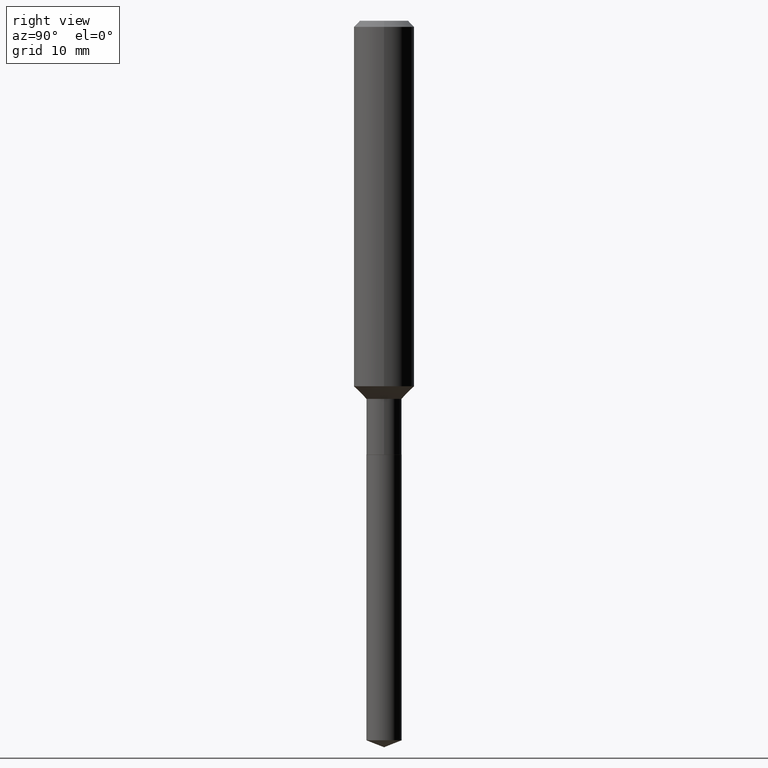
[diagram: clean part render]
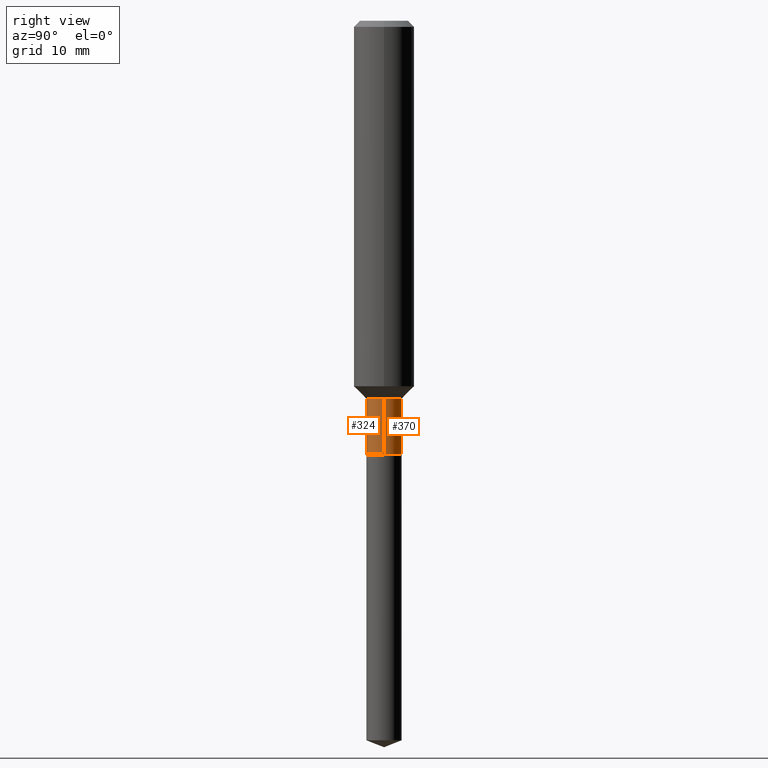
[diagram: same view with one multi-face feature highlighted, each face labeled with its STEP entity id]
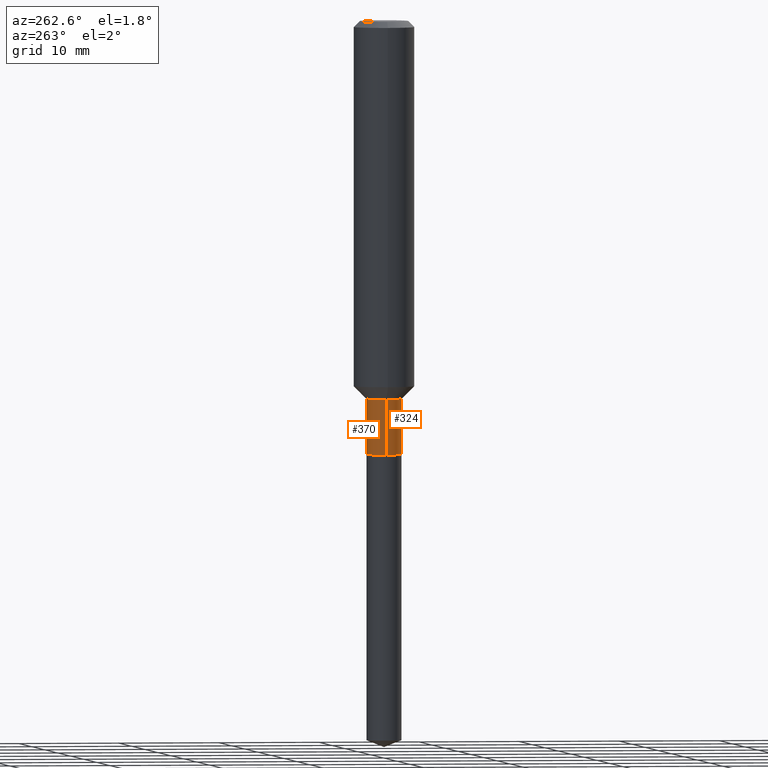
[diagram: same view with one multi-face feature highlighted, each face labeled with its STEP entity id]
A machine part, right view. The highlighted faces form ONE feature: a constant-radius fillet chain: 2 tangent blend faces with common blend radius 1.7501 mm. The faces share edges in the B-rep.
A second angle (auxiliary view) of the same feature is appended — it is thin or edge-on in the first view.
Their STEP definitions:
[1] entity #370 (Cylinder):
#24 = VECTOR ( 'NONE', #487, 39.37007874015748143 ) ;
#26 = CARTESIAN_POINT ( 'NONE',  ( 0.000000000000000000, 0.000000000000000000, 0.000000000000000000 ) ) ;
#40 = DIRECTION ( 'NONE',  ( 1.000000000000000000, -6.982962677686268288E-15, 0.000000000000000000 ) ) ;
#53 = EDGE_LOOP ( 'NONE', ( #60, #425, #317, #76 ) ) ;
#57 = FACE_OUTER_BOUND ( 'NONE', #53, .T. ) ;
#59 = DIRECTION ( 'NONE',  ( -2.445468806185136597E-29, 3.491481338843145583E-15, 1.000000000000000000 ) ) ;
#60 = ORIENTED_EDGE ( 'NONE', *, *, #243, .T. ) ;
#65 = VERTEX_POINT ( 'NONE', #411 ) ;
#76 = ORIENTED_EDGE ( 'NONE', *, *, #101, .F. ) ;
#101 = EDGE_CURVE ( 'NONE', #161, #409, #229, .T. ) ;
#104 = CARTESIAN_POINT ( 'NONE',  ( 0.06889999999999997515, -5.632108547687876483E-15, -1.475300000000000056 ) ) ;
#129 = DIRECTION ( 'NONE',  ( -2.445468806185136597E-29, 3.491481338843145583E-15, 1.000000000000000000 ) ) ;
#157 = VECTOR ( 'NONE', #488, 39.37007874015748143 ) ;
#161 = VERTEX_POINT ( 'NONE', #236 ) ;
#162 = DIRECTION ( 'NONE',  ( 1.000000000000000000, -6.982962677686265922E-15, 0.000000000000000000 ) ) ;
#173 = CIRCLE ( 'NONE', #241, 0.06889999999999997515 ) ;
#177 = CARTESIAN_POINT ( 'NONE',  ( -0.06889999999999997515, -5.040418773588007011E-15, -1.475300000000000056 ) ) ;
#186 = CARTESIAN_POINT ( 'NONE',  ( 0.06890000000000000291, -4.811261284925837385E-16, 3.359685798523399268E-30 ) ) ;
#203 = DIRECTION ( 'NONE',  ( 1.000000000000000000, -6.982962677686265922E-15, 4.876176775795934672E-29 ) ) ;
#229 = LINE ( 'NONE', #186, #157 ) ;
#236 = CARTESIAN_POINT ( 'NONE',  ( 0.06890000000000000291, -6.390109146350723310E-15, -1.692399999999999904 ) ) ;
#241 = AXIS2_PLACEMENT_3D ( 'NONE', #257, #377, #40 ) ;
#243 = EDGE_CURVE ( 'NONE', #161, #65, #268, .T. ) ;
#255 = CARTESIAN_POINT ( 'NONE',  ( 4.138711407587725556E-29, -5.908983017858139571E-15, -1.692399999999999904 ) ) ;
#257 = CARTESIAN_POINT ( 'NONE',  ( 3.607800129764931825E-29, -5.150982419195292745E-15, -1.475300000000000056 ) ) ;
#268 = CIRCLE ( 'NONE', #338, 0.06890000000000000291 ) ;
#317 = ORIENTED_EDGE ( 'NONE', *, *, #482, .F. ) ;
#325 = CYLINDRICAL_SURFACE ( 'NONE', #426, 0.06890000000000000291 ) ;
#338 = AXIS2_PLACEMENT_3D ( 'NONE', #255, #129, #162 ) ;
#370 = ADVANCED_FACE ( 'NONE', ( #57 ), #325, .T. ) ;
#377 = DIRECTION ( 'NONE',  ( -2.445468806185136597E-29, 3.491481338843145583E-15, 1.000000000000000000 ) ) ;
#409 = VERTEX_POINT ( 'NONE', #104 ) ;
#411 = CARTESIAN_POINT ( 'NONE',  ( -0.06890000000000001679, -5.040418773588007011E-15, -1.692399999999999904 ) ) ;
#425 = ORIENTED_EDGE ( 'NONE', *, *, #463, .T. ) ;
#426 = AXIS2_PLACEMENT_3D ( 'NONE', #26, #59, #203 ) ;
#441 = VERTEX_POINT ( 'NONE', #177 ) ;
#446 = LINE ( 'NONE', #489, #24 ) ;
#463 = EDGE_CURVE ( 'NONE', #65, #441, #446, .T. ) ;
#482 = EDGE_CURVE ( 'NONE', #409, #441, #173, .T. ) ;
#487 = DIRECTION ( 'NONE',  ( -2.445468806185136877E-29, 3.491481338843145188E-15, 1.000000000000000000 ) ) ;
#488 = DIRECTION ( 'NONE',  ( -2.445468806185136877E-29, 3.491481338843145188E-15, 1.000000000000000000 ) ) ;
#489 = CARTESIAN_POINT ( 'NONE',  ( -0.06890000000000000291, 4.895639449387090487E-16, -3.389146277185630017E-30 ) ) ;
[2] entity #324 (Cylinder):
#24 = VECTOR ( 'NONE', #487, 39.37007874015748143 ) ;
#28 = CYLINDRICAL_SURFACE ( 'NONE', #315, 0.06890000000000000291 ) ;
#36 = DIRECTION ( 'NONE',  ( 1.000000000000000000, -6.982962677686268288E-15, 0.000000000000000000 ) ) ;
#43 = CARTESIAN_POINT ( 'NONE',  ( 4.138711407587725556E-29, -5.908983017858139571E-15, -1.692399999999999904 ) ) ;
#62 = EDGE_CURVE ( 'NONE', #441, #409, #417, .T. ) ;
#65 = VERTEX_POINT ( 'NONE', #411 ) ;
#71 = EDGE_CURVE ( 'NONE', #65, #161, #438, .T. ) ;
#101 = EDGE_CURVE ( 'NONE', #161, #409, #229, .T. ) ;
#104 = CARTESIAN_POINT ( 'NONE',  ( 0.06889999999999997515, -5.632108547687876483E-15, -1.475300000000000056 ) ) ;
#110 = AXIS2_PLACEMENT_3D ( 'NONE', #219, #147, #36 ) ;
#144 = DIRECTION ( 'NONE',  ( 1.000000000000000000, -6.982962677686265922E-15, 0.000000000000000000 ) ) ;
#147 = DIRECTION ( 'NONE',  ( -2.445468806185136597E-29, 3.491481338843145583E-15, 1.000000000000000000 ) ) ;
#157 = VECTOR ( 'NONE', #488, 39.37007874015748143 ) ;
#161 = VERTEX_POINT ( 'NONE', #236 ) ;
#169 = CARTESIAN_POINT ( 'NONE',  ( 0.000000000000000000, 0.000000000000000000, 0.000000000000000000 ) ) ;
#176 = DIRECTION ( 'NONE',  ( -2.445468806185136597E-29, 3.491481338843145583E-15, 1.000000000000000000 ) ) ;
#177 = CARTESIAN_POINT ( 'NONE',  ( -0.06889999999999997515, -5.040418773588007011E-15, -1.475300000000000056 ) ) ;
#186 = CARTESIAN_POINT ( 'NONE',  ( 0.06890000000000000291, -4.811261284925837385E-16, 3.359685798523399268E-30 ) ) ;
#204 = EDGE_LOOP ( 'NONE', ( #360, #419, #256, #470 ) ) ;
#219 = CARTESIAN_POINT ( 'NONE',  ( 3.607800129764931825E-29, -5.150982419195292745E-15, -1.475300000000000056 ) ) ;
#229 = LINE ( 'NONE', #186, #157 ) ;
#236 = CARTESIAN_POINT ( 'NONE',  ( 0.06890000000000000291, -6.390109146350723310E-15, -1.692399999999999904 ) ) ;
#256 = ORIENTED_EDGE ( 'NONE', *, *, #101, .T. ) ;
#315 = AXIS2_PLACEMENT_3D ( 'NONE', #169, #319, #327 ) ;
#319 = DIRECTION ( 'NONE',  ( -2.445468806185136597E-29, 3.491481338843145583E-15, 1.000000000000000000 ) ) ;
#324 = ADVANCED_FACE ( 'NONE', ( #329 ), #28, .T. ) ;
#327 = DIRECTION ( 'NONE',  ( 1.000000000000000000, -6.982962677686265922E-15, 4.876176775795934672E-29 ) ) ;
#329 = FACE_OUTER_BOUND ( 'NONE', #204, .T. ) ;
#360 = ORIENTED_EDGE ( 'NONE', *, *, #463, .F. ) ;
#409 = VERTEX_POINT ( 'NONE', #104 ) ;
#411 = CARTESIAN_POINT ( 'NONE',  ( -0.06890000000000001679, -5.040418773588007011E-15, -1.692399999999999904 ) ) ;
#415 = AXIS2_PLACEMENT_3D ( 'NONE', #43, #176, #144 ) ;
#417 = CIRCLE ( 'NONE', #110, 0.06889999999999997515 ) ;
#419 = ORIENTED_EDGE ( 'NONE', *, *, #71, .T. ) ;
#438 = CIRCLE ( 'NONE', #415, 0.06890000000000000291 ) ;
#441 = VERTEX_POINT ( 'NONE', #177 ) ;
#446 = LINE ( 'NONE', #489, #24 ) ;
#463 = EDGE_CURVE ( 'NONE', #65, #441, #446, .T. ) ;
#470 = ORIENTED_EDGE ( 'NONE', *, *, #62, .F. ) ;
#487 = DIRECTION ( 'NONE',  ( -2.445468806185136877E-29, 3.491481338843145188E-15, 1.000000000000000000 ) ) ;
#488 = DIRECTION ( 'NONE',  ( -2.445468806185136877E-29, 3.491481338843145188E-15, 1.000000000000000000 ) ) ;
#489 = CARTESIAN_POINT ( 'NONE',  ( -0.06890000000000000291, 4.895639449387090487E-16, -3.389146277185630017E-30 ) ) ;